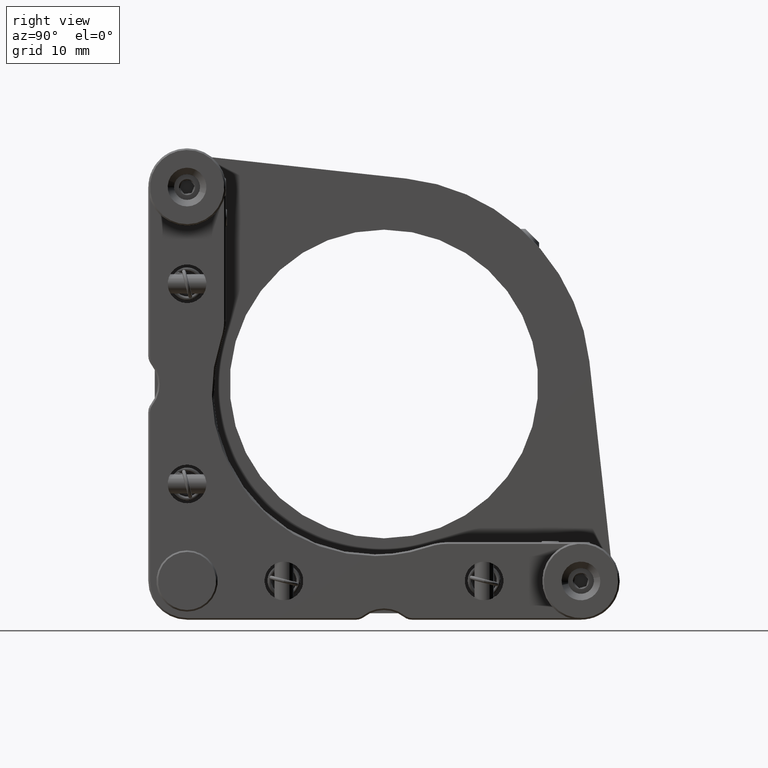
[diagram: clean part render]
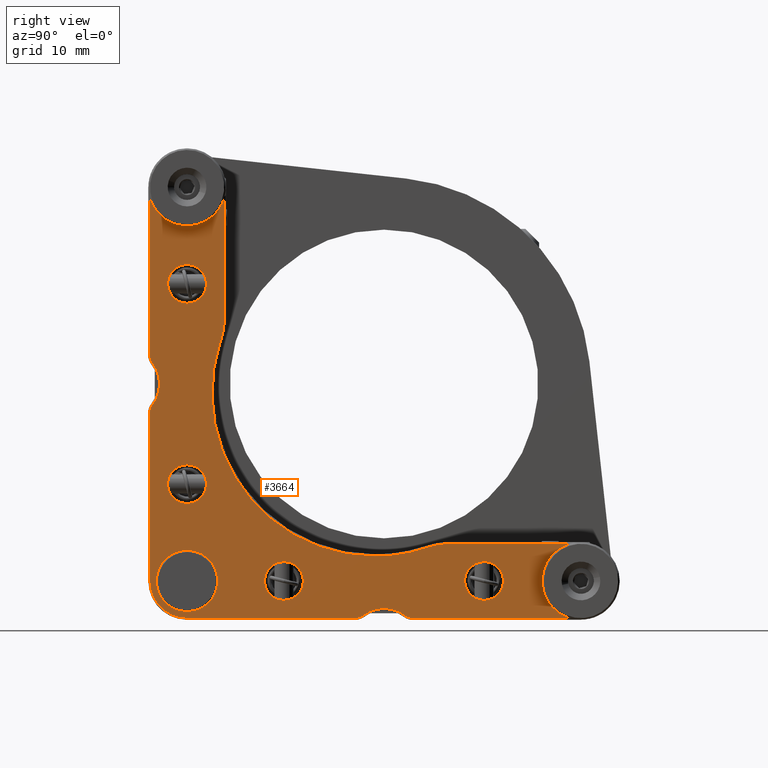
[diagram: same view with one face highlighted and labeled with its STEP entity id]
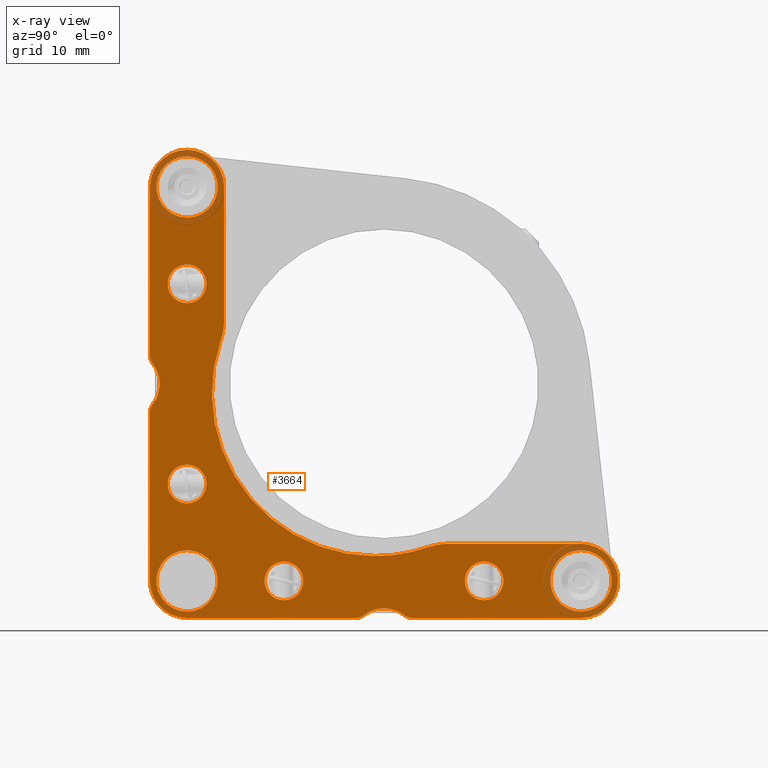
[diagram: x-ray of the same camera — body ghosted, the highlighted face saturated]
A machine part, right view. The second image highlights one B-rep face of the part: STEP entity #3664.
The next image is the same camera in x-ray: the body ghosted, the highlighted face saturated — about 6% of this face is hidden behind the body in this view.
In plain terms, the highlighted planar face has unit normal (1, 0, 0).
Its self-contained STEP definition (entity closure, byte-faithful):
#37 = CIRCLE ( 'NONE', #4143, 1.749999999999973799 ) ;
#62 = CARTESIAN_POINT ( 'NONE',  ( 7.500000000000000000, -30.50000000000001421, -36.24999999999997868 ) ) ;
#92 = ORIENTED_EDGE ( 'NONE', *, *, #14447, .F. ) ;
#99 = CARTESIAN_POINT ( 'NONE',  ( 7.500000000000000000, 4.330127018922172333, -36.24999999999997158 ) ) ;
#104 = EDGE_CURVE ( 'NONE', #2588, #3512, #14857, .T. ) ;
#130 = EDGE_LOOP ( 'NONE', ( #5963, #11564 ) ) ;
#252 = DIRECTION ( 'NONE',  ( 1.000000000000000000, 0.0000000000000000000, -0.0000000000000000000 ) ) ;
#282 = FACE_BOUND ( 'NONE', #14393, .T. ) ;
#370 = LINE ( 'NONE', #6398, #14905 ) ;
#386 = LINE ( 'NONE', #489, #9195 ) ;
#424 = CARTESIAN_POINT ( 'NONE',  ( 7.500000000000000000, -25.27928571428576277, 6.806230180509777128 ) ) ;
#427 = CARTESIAN_POINT ( 'NONE',  ( 7.500000000000000000, -35.87499999999998579, -3.247595264191514897 ) ) ;
#447 = DIRECTION ( 'NONE',  ( 1.000000000000000000, 0.0000000000000000000, 0.0000000000000000000 ) ) ;
#489 = CARTESIAN_POINT ( 'NONE',  ( 7.500000000000000000, 30.49999999999999289, -36.24999999999997158 ) ) ;
#545 = CARTESIAN_POINT ( 'NONE',  ( 7.500000000000000000, 15.49999999999999289, -27.50000000000002132 ) ) ;
#623 = VERTEX_POINT ( 'NONE', #4999 ) ;
#669 = CARTESIAN_POINT ( 'NONE',  ( 7.500000000000000000, -4.330127018922193649, -36.24999999999997158 ) ) ;
#674 = EDGE_LOOP ( 'NONE', ( #2429, #14532 ) ) ;
#704 = EDGE_CURVE ( 'NONE', #5251, #2275, #4405, .T. ) ;
#713 = CARTESIAN_POINT ( 'NONE',  ( 7.500000000000000000, -36.24999999999997868, -30.50000000000001421 ) ) ;
#757 = DIRECTION ( 'NONE',  ( 0.0000000000000000000, 0.0000000000000000000, -1.000000000000000000 ) ) ;
#769 = ORIENTED_EDGE ( 'NONE', *, *, #2735, .F. ) ;
#771 = EDGE_LOOP ( 'NONE', ( #769, #16947 ) ) ;
#773 = DIRECTION ( 'NONE',  ( 0.0000000000000000000, 0.0000000000000000000, -1.000000000000000000 ) ) ;
#1018 = LINE ( 'NONE', #7047, #9461 ) ;
#1172 = CARTESIAN_POINT ( 'NONE',  ( 7.500000000000000000, -1.400000000000005240, -26.65000000000003411 ) ) ;
#1272 = CARTESIAN_POINT ( 'NONE',  ( 7.500000000000000000, -15.49999999999999112, -33.50000000000000000 ) ) ;
#1293 = CARTESIAN_POINT ( 'NONE',  ( 7.500000000000000000, 30.49999999999999289, -30.50000000000000711 ) ) ;
#1428 = AXIS2_PLACEMENT_3D ( 'NONE', #15208, #12046, #12143 ) ;
#1441 = EDGE_CURVE ( 'NONE', #2003, #1477, #5373, .T. ) ;
#1477 = VERTEX_POINT ( 'NONE', #4896 ) ;
#1508 = EDGE_CURVE ( 'NONE', #7924, #2598, #4747, .T. ) ;
#1514 = CIRCLE ( 'NONE', #10008, 5.749999999999970690 ) ;
#1545 = CARTESIAN_POINT ( 'NONE',  ( 7.500000000000000000, 36.24999999999996447, -30.50000000000000711 ) ) ;
#1553 = VERTEX_POINT ( 'NONE', #15045 ) ;
#1597 = AXIS2_PLACEMENT_3D ( 'NONE', #12088, #8883, #19273 ) ;
#1641 = CARTESIAN_POINT ( 'NONE',  ( 7.500000000000000000, -35.87499999999998579, 3.247595264191785347 ) ) ;
#1753 = EDGE_CURVE ( 'NONE', #1553, #6243, #4104, .T. ) ;
#1864 = CARTESIAN_POINT ( 'NONE',  ( 7.500000000000000000, 0.0000000000000000000, 0.0000000000000000000 ) ) ;
#1874 = CARTESIAN_POINT ( 'NONE',  ( 7.500000000000000000, -30.50000000000002842, 25.74999999999998579 ) ) ;
#1922 = DIRECTION ( 'NONE',  ( 0.0000000000000000000, 0.0000000000000000000, 1.000000000000000000 ) ) ;
#1935 = CIRCLE ( 'NONE', #15449, 9.749999999999969802 ) ;
#1984 = ORIENTED_EDGE ( 'NONE', *, *, #11538, .T. ) ;
#2003 = VERTEX_POINT ( 'NONE', #11054 ) ;
#2019 = DIRECTION ( 'NONE',  ( 1.000000000000000000, 0.0000000000000000000, -0.0000000000000000000 ) ) ;
#2106 = DIRECTION ( 'NONE',  ( 0.0000000000000000000, 0.0000000000000000000, -1.000000000000000000 ) ) ;
#2133 = CARTESIAN_POINT ( 'NONE',  ( 7.500000000000000000, -30.50000000000001421, -25.75000000000001066 ) ) ;
#2275 = VERTEX_POINT ( 'NONE', #3722 ) ;
#2310 = AXIS2_PLACEMENT_3D ( 'NONE', #18757, #9625, #9438 ) ;
#2392 = DIRECTION ( 'NONE',  ( 0.0000000000000000000, 0.0000000000000000000, -1.000000000000000000 ) ) ;
#2429 = ORIENTED_EDGE ( 'NONE', *, *, #5554, .F. ) ;
#2588 = VERTEX_POINT ( 'NONE', #62 ) ;
#2598 = VERTEX_POINT ( 'NONE', #545 ) ;
#2735 = EDGE_CURVE ( 'NONE', #1477, #2003, #2907, .T. ) ;
#2777 = CARTESIAN_POINT ( 'NONE',  ( 7.500000000000000000, 30.49999999999999289, -30.50000000000000711 ) ) ;
#2848 = VERTEX_POINT ( 'NONE', #15814 ) ;
#2871 = ORIENTED_EDGE ( 'NONE', *, *, #5290, .F. ) ;
#2907 = CIRCLE ( 'NONE', #5755, 2.999999999999981792 ) ;
#3099 = CARTESIAN_POINT ( 'NONE',  ( 7.500000000000000000, -15.49999999999999112, -30.50000000000000711 ) ) ;
#3138 = VERTEX_POINT ( 'NONE', #18442 ) ;
#3182 = DIRECTION ( 'NONE',  ( 1.000000000000000000, 0.0000000000000000000, 0.0000000000000000000 ) ) ;
#3323 = FACE_BOUND ( 'NONE', #6432, .T. ) ;
#3407 = VECTOR ( 'NONE', #17507, 1000.000000000000000 ) ;
#3436 = VERTEX_POINT ( 'NONE', #11809 ) ;
#3443 = CARTESIAN_POINT ( 'NONE',  ( 7.500000000000000000, -30.50000000000002842, 35.24999999999999289 ) ) ;
#3512 = VERTEX_POINT ( 'NONE', #669 ) ;
#3549 = DIRECTION ( 'NONE',  ( 0.0000000000000000000, 0.0000000000000000000, -1.000000000000000000 ) ) ;
#3664 = ADVANCED_FACE ( 'NONE', ( #12291, #6694, #7797, #13780, #282, #18288, #4829, #3323 ), #9356, .T. ) ;
#3680 = EDGE_CURVE ( 'NONE', #623, #3436, #370, .T. ) ;
#3722 = CARTESIAN_POINT ( 'NONE',  ( 7.500000000000000000, -30.50000000000001421, -35.25000000000000000 ) ) ;
#3724 = AXIS2_PLACEMENT_3D ( 'NONE', #8289, #14270, #773 ) ;
#3767 = DIRECTION ( 'NONE',  ( 0.0000000000000000000, 0.0000000000000000000, -1.000000000000000000 ) ) ;
#3988 = CARTESIAN_POINT ( 'NONE',  ( 7.500000000000000000, -36.24999999999997868, 4.330127018922317994 ) ) ;
#4030 = AXIS2_PLACEMENT_3D ( 'NONE', #14124, #9412, #1922 ) ;
#4063 = EDGE_CURVE ( 'NONE', #10786, #8485, #11768, .T. ) ;
#4104 = CIRCLE ( 'NONE', #12260, 25.25000000000002842 ) ;
#4143 = AXIS2_PLACEMENT_3D ( 'NONE', #14305, #17150, #3767 ) ;
#4205 = ORIENTED_EDGE ( 'NONE', *, *, #5818, .T. ) ;
#4294 = VERTEX_POINT ( 'NONE', #8306 ) ;
#4405 = CIRCLE ( 'NONE', #15708, 4.749999999999997335 ) ;
#4419 = EDGE_LOOP ( 'NONE', ( #8570, #5870 ) ) ;
#4532 = DIRECTION ( 'NONE',  ( 0.0000000000000000000, -1.321694076934704091E-15, -1.000000000000000000 ) ) ;
#4541 = VERTEX_POINT ( 'NONE', #19383 ) ;
#4557 = DIRECTION ( 'NONE',  ( 1.000000000000000000, 0.0000000000000000000, 0.0000000000000000000 ) ) ;
#4734 = EDGE_CURVE ( 'NONE', #11152, #15326, #9897, .T. ) ;
#4747 = CIRCLE ( 'NONE', #16369, 2.999999999999988898 ) ;
#4761 = CARTESIAN_POINT ( 'NONE',  ( 7.500000000000000000, 30.49999999999999289, -30.50000000000000711 ) ) ;
#4825 = CARTESIAN_POINT ( 'NONE',  ( 7.500000000000000000, -40.00000000000000711, 1.318389841742373392E-13 ) ) ;
#4829 = FACE_BOUND ( 'NONE', #19448, .T. ) ;
#4896 = CARTESIAN_POINT ( 'NONE',  ( 7.500000000000000000, -30.49999999999999289, 12.50000000000001599 ) ) ;
#4999 = CARTESIAN_POINT ( 'NONE',  ( 7.500000000000000000, -24.75000000000005684, 9.974972527439284420 ) ) ;
#5061 = DIRECTION ( 'NONE',  ( 1.000000000000000000, 0.0000000000000000000, 0.0000000000000000000 ) ) ;
#5163 = CIRCLE ( 'NONE', #10493, 2.999999999999995559 ) ;
#5188 = CARTESIAN_POINT ( 'NONE',  ( 7.500000000000000000, -1.400000000000005240, -1.400000000000005462 ) ) ;
#5234 = CIRCLE ( 'NONE', #7758, 2.999999999999995559 ) ;
#5251 = VERTEX_POINT ( 'NONE', #2133 ) ;
#5287 = DIRECTION ( 'NONE',  ( 0.0000000000000000000, 0.0000000000000000000, -1.000000000000000000 ) ) ;
#5290 = EDGE_CURVE ( 'NONE', #18582, #11108, #7744, .T. ) ;
#5316 = ORIENTED_EDGE ( 'NONE', *, *, #104, .T. ) ;
#5373 = CIRCLE ( 'NONE', #14783, 2.999999999999981792 ) ;
#5379 = ORIENTED_EDGE ( 'NONE', *, *, #10905, .T. ) ;
#5483 = EDGE_CURVE ( 'NONE', #2275, #5251, #15587, .T. ) ;
#5514 = AXIS2_PLACEMENT_3D ( 'NONE', #11205, #6695, #15651 ) ;
#5554 = EDGE_CURVE ( 'NONE', #10407, #4294, #17781, .T. ) ;
#5557 = CIRCLE ( 'NONE', #18107, 5.749999999999970690 ) ;
#5665 = DIRECTION ( 'NONE',  ( 0.0000000000000000000, -1.000000000000000000, -2.448429006113450357E-16 ) ) ;
#5686 = ORIENTED_EDGE ( 'NONE', *, *, #16798, .T. ) ;
#5753 = ORIENTED_EDGE ( 'NONE', *, *, #17091, .F. ) ;
#5755 = AXIS2_PLACEMENT_3D ( 'NONE', #6278, #13647, #10695 ) ;
#5774 = VERTEX_POINT ( 'NONE', #424 ) ;
#5818 = EDGE_CURVE ( 'NONE', #6243, #5774, #19034, .T. ) ;
#5870 = ORIENTED_EDGE ( 'NONE', *, *, #704, .F. ) ;
#5913 = EDGE_CURVE ( 'NONE', #4294, #10407, #5234, .T. ) ;
#5948 = DIRECTION ( 'NONE',  ( 1.000000000000000000, 0.0000000000000000000, 0.0000000000000000000 ) ) ;
#5963 = ORIENTED_EDGE ( 'NONE', *, *, #11696, .F. ) ;
#6001 = DIRECTION ( 'NONE',  ( 1.000000000000000000, 0.0000000000000000000, 0.0000000000000000000 ) ) ;
#6046 = DIRECTION ( 'NONE',  ( 0.0000000000000000000, 0.0000000000000000000, -1.000000000000000000 ) ) ;
#6173 = CIRCLE ( 'NONE', #14338, 4.749999999999997335 ) ;
#6205 = AXIS2_PLACEMENT_3D ( 'NONE', #10176, #10275, #6046 ) ;
#6231 = DIRECTION ( 'NONE',  ( 0.0000000000000000000, 0.0000000000000000000, -1.000000000000000000 ) ) ;
#6243 = VERTEX_POINT ( 'NONE', #1172 ) ;
#6264 = VERTEX_POINT ( 'NONE', #1272 ) ;
#6278 = CARTESIAN_POINT ( 'NONE',  ( 7.500000000000000000, -30.49999999999999289, 15.50000000000000000 ) ) ;
#6398 = CARTESIAN_POINT ( 'NONE',  ( 7.500000000000000000, -24.75000000000005684, 30.49999999999998579 ) ) ;
#6432 = EDGE_LOOP ( 'NONE', ( #2871, #17558 ) ) ;
#6564 = EDGE_CURVE ( 'NONE', #3138, #8988, #18741, .T. ) ;
#6694 = FACE_BOUND ( 'NONE', #771, .T. ) ;
#6695 = DIRECTION ( 'NONE',  ( 1.000000000000000000, 0.0000000000000000000, 0.0000000000000000000 ) ) ;
#6856 = DIRECTION ( 'NONE',  ( -1.000000000000000000, -0.0000000000000000000, -0.0000000000000000000 ) ) ;
#6964 = CIRCLE ( 'NONE', #1597, 4.750000000000000888 ) ;
#7047 = CARTESIAN_POINT ( 'NONE',  ( 7.500000000000000000, 9.974972527439348369, -24.75000000000003553 ) ) ;
#7155 = CARTESIAN_POINT ( 'NONE',  ( 7.500000000000000000, 15.49999999999999289, -30.50000000000000711 ) ) ;
#7248 = ORIENTED_EDGE ( 'NONE', *, *, #8046, .T. ) ;
#7251 = DIRECTION ( 'NONE',  ( 0.0000000000000000000, 0.0000000000000000000, -1.000000000000000000 ) ) ;
#7390 = CARTESIAN_POINT ( 'NONE',  ( 7.500000000000000000, -4.330127018922193649, -36.24999999999997158 ) ) ;
#7414 = EDGE_CURVE ( 'NONE', #9222, #2588, #5557, .T. ) ;
#7562 = EDGE_CURVE ( 'NONE', #11108, #18582, #6173, .T. ) ;
#7689 = CIRCLE ( 'NONE', #2310, 1.749999999999973799 ) ;
#7705 = AXIS2_PLACEMENT_3D ( 'NONE', #13254, #17668, #11675 ) ;
#7744 = CIRCLE ( 'NONE', #11485, 4.749999999999997335 ) ;
#7758 = AXIS2_PLACEMENT_3D ( 'NONE', #14511, #11656, #2392 ) ;
#7797 = FACE_BOUND ( 'NONE', #674, .T. ) ;
#7818 = DIRECTION ( 'NONE',  ( 0.0000000000000000000, 1.000000000000000000, 9.505334114941409750E-17 ) ) ;
#7834 = DIRECTION ( 'NONE',  ( 0.0000000000000000000, 0.0000000000000000000, -1.000000000000000000 ) ) ;
#7864 = DIRECTION ( 'NONE',  ( 0.0000000000000000000, 0.0000000000000000000, 1.000000000000000000 ) ) ;
#7891 = DIRECTION ( 'NONE',  ( 1.000000000000000000, 0.0000000000000000000, 0.0000000000000000000 ) ) ;
#7924 = VERTEX_POINT ( 'NONE', #11806 ) ;
#8046 = EDGE_CURVE ( 'NONE', #18714, #11736, #15302, .T. ) ;
#8289 = CARTESIAN_POINT ( 'NONE',  ( 7.500000000000000000, -30.50000000000000711, 30.49999999999998579 ) ) ;
#8296 = EDGE_CURVE ( 'NONE', #3512, #10786, #14370, .T. ) ;
#8306 = CARTESIAN_POINT ( 'NONE',  ( 7.500000000000000000, -30.50000000000001421, -12.49999999999999289 ) ) ;
#8383 = EDGE_CURVE ( 'NONE', #13988, #18690, #12157, .T. ) ;
#8485 = VERTEX_POINT ( 'NONE', #14597 ) ;
#8570 = ORIENTED_EDGE ( 'NONE', *, *, #5483, .F. ) ;
#8746 = CARTESIAN_POINT ( 'NONE',  ( 7.500000000000000000, 9.974972527439348369, -24.75000000000003553 ) ) ;
#8874 = VERTEX_POINT ( 'NONE', #8746 ) ;
#8883 = DIRECTION ( 'NONE',  ( 1.000000000000000000, 0.0000000000000000000, 0.0000000000000000000 ) ) ;
#8988 = VERTEX_POINT ( 'NONE', #10183 ) ;
#9008 = ORIENTED_EDGE ( 'NONE', *, *, #10348, .T. ) ;
#9195 = VECTOR ( 'NONE', #7818, 1000.000000000000000 ) ;
#9202 = CARTESIAN_POINT ( 'NONE',  ( 7.500000000000000000, -3.247595264191659670, -35.87499999999998579 ) ) ;
#9222 = VERTEX_POINT ( 'NONE', #713 ) ;
#9318 = AXIS2_PLACEMENT_3D ( 'NONE', #11953, #3182, #14919 ) ;
#9356 = PLANE ( 'NONE',  #9866 ) ;
#9392 = AXIS2_PLACEMENT_3D ( 'NONE', #2777, #5948, #12123 ) ;
#9412 = DIRECTION ( 'NONE',  ( 1.000000000000000000, 0.0000000000000000000, -0.0000000000000000000 ) ) ;
#9438 = DIRECTION ( 'NONE',  ( 0.0000000000000000000, 0.0000000000000000000, -1.000000000000000000 ) ) ;
#9461 = VECTOR ( 'NONE', #5665, 1000.000000000000000 ) ;
#9625 = DIRECTION ( 'NONE',  ( 1.000000000000000000, 0.0000000000000000000, 0.0000000000000000000 ) ) ;
#9866 = AXIS2_PLACEMENT_3D ( 'NONE', #1864, #7891, #13872 ) ;
#9871 = DIRECTION ( 'NONE',  ( 1.000000000000000000, 0.0000000000000000000, 0.0000000000000000000 ) ) ;
#9897 = CIRCLE ( 'NONE', #5514, 4.750000000000000888 ) ;
#9919 = CARTESIAN_POINT ( 'NONE',  ( 7.500000000000000000, -30.50000000000002842, 30.49999999999998579 ) ) ;
#9993 = DIRECTION ( 'NONE',  ( 1.000000000000000000, 0.0000000000000000000, 0.0000000000000000000 ) ) ;
#10008 = AXIS2_PLACEMENT_3D ( 'NONE', #9919, #17389, #757 ) ;
#10020 = EDGE_CURVE ( 'NONE', #12177, #3138, #19125, .T. ) ;
#10021 = CARTESIAN_POINT ( 'NONE',  ( 7.500000000000000000, -30.50000000000001421, -18.49999999999998224 ) ) ;
#10115 = ORIENTED_EDGE ( 'NONE', *, *, #14459, .T. ) ;
#10176 = CARTESIAN_POINT ( 'NONE',  ( 7.500000000000000000, -34.50000000000000000, 4.330127018922317994 ) ) ;
#10183 = CARTESIAN_POINT ( 'NONE',  ( 7.500000000000000000, -36.24999999999997868, 4.330127018922317994 ) ) ;
#10191 = ORIENTED_EDGE ( 'NONE', *, *, #4734, .F. ) ;
#10275 = DIRECTION ( 'NONE',  ( 1.000000000000000000, 0.0000000000000000000, 0.0000000000000000000 ) ) ;
#10313 = EDGE_CURVE ( 'NONE', #4541, #9222, #12982, .T. ) ;
#10348 = EDGE_CURVE ( 'NONE', #3436, #12177, #1514, .T. ) ;
#10392 = CARTESIAN_POINT ( 'NONE',  ( 7.500000000000000000, -30.50000000000002842, 36.24999999999996447 ) ) ;
#10407 = VERTEX_POINT ( 'NONE', #10021 ) ;
#10421 = ORIENTED_EDGE ( 'NONE', *, *, #3680, .T. ) ;
#10493 = AXIS2_PLACEMENT_3D ( 'NONE', #3099, #2019, #16691 ) ;
#10527 = DIRECTION ( 'NONE',  ( 0.0000000000000000000, 0.0000000000000000000, -1.000000000000000000 ) ) ;
#10600 = DIRECTION ( 'NONE',  ( 1.000000000000000000, 0.0000000000000000000, 0.0000000000000000000 ) ) ;
#10695 = DIRECTION ( 'NONE',  ( 0.0000000000000000000, 0.0000000000000000000, 1.000000000000000000 ) ) ;
#10742 = ORIENTED_EDGE ( 'NONE', *, *, #14731, .T. ) ;
#10786 = VERTEX_POINT ( 'NONE', #9202 ) ;
#10889 = DIRECTION ( 'NONE',  ( 0.0000000000000000000, 0.0000000000000000000, -1.000000000000000000 ) ) ;
#10905 = EDGE_CURVE ( 'NONE', #8485, #11069, #37, .T. ) ;
#11054 = CARTESIAN_POINT ( 'NONE',  ( 7.500000000000000000, -30.49999999999999289, 18.49999999999998224 ) ) ;
#11061 = DIRECTION ( 'NONE',  ( -1.000000000000000000, -0.0000000000000000000, -0.0000000000000000000 ) ) ;
#11069 = VERTEX_POINT ( 'NONE', #99 ) ;
#11108 = VERTEX_POINT ( 'NONE', #13690 ) ;
#11152 = VERTEX_POINT ( 'NONE', #1874 ) ;
#11165 = VECTOR ( 'NONE', #5287, 1000.000000000000000 ) ;
#11205 = CARTESIAN_POINT ( 'NONE',  ( 7.500000000000000000, -30.50000000000002842, 30.49999999999998579 ) ) ;
#11208 = ORIENTED_EDGE ( 'NONE', *, *, #13506, .T. ) ;
#11463 = DIRECTION ( 'NONE',  ( 0.0000000000000000000, 0.0000000000000000000, -1.000000000000000000 ) ) ;
#11485 = AXIS2_PLACEMENT_3D ( 'NONE', #12858, #447, #18473 ) ;
#11538 = EDGE_CURVE ( 'NONE', #8988, #18714, #14683, .T. ) ;
#11564 = ORIENTED_EDGE ( 'NONE', *, *, #16024, .F. ) ;
#11602 = ORIENTED_EDGE ( 'NONE', *, *, #6564, .T. ) ;
#11656 = DIRECTION ( 'NONE',  ( 1.000000000000000000, 0.0000000000000000000, 0.0000000000000000000 ) ) ;
#11675 = DIRECTION ( 'NONE',  ( 0.0000000000000000000, 0.0000000000000000000, -1.000000000000000000 ) ) ;
#11696 = EDGE_CURVE ( 'NONE', #6264, #2848, #16902, .T. ) ;
#11736 = VERTEX_POINT ( 'NONE', #427 ) ;
#11744 = DIRECTION ( 'NONE',  ( 1.000000000000000000, 0.0000000000000000000, 0.0000000000000000000 ) ) ;
#11768 = CIRCLE ( 'NONE', #12390, 5.250000000000025757 ) ;
#11806 = CARTESIAN_POINT ( 'NONE',  ( 7.500000000000000000, 15.49999999999999289, -33.49999999999999289 ) ) ;
#11809 = CARTESIAN_POINT ( 'NONE',  ( 7.500000000000000000, -24.75000000000005684, 30.49999999999998579 ) ) ;
#11953 = CARTESIAN_POINT ( 'NONE',  ( 7.500000000000000000, -30.50000000000001421, -15.49999999999998579 ) ) ;
#12046 = DIRECTION ( 'NONE',  ( 1.000000000000000000, 0.0000000000000000000, 0.0000000000000000000 ) ) ;
#12088 = CARTESIAN_POINT ( 'NONE',  ( 7.500000000000000000, -30.50000000000002842, 30.49999999999998579 ) ) ;
#12123 = DIRECTION ( 'NONE',  ( 0.0000000000000000000, 0.0000000000000000000, -1.000000000000000000 ) ) ;
#12143 = DIRECTION ( 'NONE',  ( 0.0000000000000000000, 0.0000000000000000000, -1.000000000000000000 ) ) ;
#12157 = CIRCLE ( 'NONE', #18137, 5.749999999999970690 ) ;
#12177 = VERTEX_POINT ( 'NONE', #10392 ) ;
#12260 = AXIS2_PLACEMENT_3D ( 'NONE', #5188, #6856, #14137 ) ;
#12291 = FACE_OUTER_BOUND ( 'NONE', #19045, .T. ) ;
#12386 = DIRECTION ( 'NONE',  ( 0.0000000000000000000, 0.0000000000000000000, 1.000000000000000000 ) ) ;
#12390 = AXIS2_PLACEMENT_3D ( 'NONE', #12412, #15376, #3549 ) ;
#12412 = CARTESIAN_POINT ( 'NONE',  ( 7.500000000000000000, -6.938893903907228378E-15, -40.00000000000000711 ) ) ;
#12502 = EDGE_CURVE ( 'NONE', #11736, #4541, #7689, .T. ) ;
#12827 = EDGE_CURVE ( 'NONE', #8874, #1553, #13644, .T. ) ;
#12858 = CARTESIAN_POINT ( 'NONE',  ( 7.500000000000000000, 30.49999999999999289, -30.50000000000000711 ) ) ;
#12910 = AXIS2_PLACEMENT_3D ( 'NONE', #7155, #11744, #7251 ) ;
#12982 = LINE ( 'NONE', #18978, #3407 ) ;
#13106 = AXIS2_PLACEMENT_3D ( 'NONE', #4825, #16917, #4532 ) ;
#13129 = CIRCLE ( 'NONE', #9392, 5.749999999999970690 ) ;
#13254 = CARTESIAN_POINT ( 'NONE',  ( 7.500000000000000000, 9.974972527439348369, -34.50000000000000711 ) ) ;
#13286 = CARTESIAN_POINT ( 'NONE',  ( 7.500000000000000000, -4.330127018922190985, -34.50000000000000000 ) ) ;
#13506 = EDGE_CURVE ( 'NONE', #18690, #17985, #13129, .T. ) ;
#13642 = CARTESIAN_POINT ( 'NONE',  ( 7.500000000000000000, 15.49999999999999289, -30.50000000000000711 ) ) ;
#13644 = CIRCLE ( 'NONE', #7705, 9.749999999999973355 ) ;
#13647 = DIRECTION ( 'NONE',  ( 1.000000000000000000, 0.0000000000000000000, -0.0000000000000000000 ) ) ;
#13690 = CARTESIAN_POINT ( 'NONE',  ( 7.500000000000000000, 30.49999999999999289, -25.75000000000001066 ) ) ;
#13780 = FACE_BOUND ( 'NONE', #130, .T. ) ;
#13837 = ORIENTED_EDGE ( 'NONE', *, *, #12827, .T. ) ;
#13843 = CARTESIAN_POINT ( 'NONE',  ( 7.500000000000000000, -30.49999999999999289, 15.50000000000000000 ) ) ;
#13872 = DIRECTION ( 'NONE',  ( 0.0000000000000000000, 0.0000000000000000000, -1.000000000000000000 ) ) ;
#13988 = VERTEX_POINT ( 'NONE', #18886 ) ;
#14124 = CARTESIAN_POINT ( 'NONE',  ( 7.500000000000000000, -15.49999999999999112, -30.50000000000000711 ) ) ;
#14137 = DIRECTION ( 'NONE',  ( 0.0000000000000000000, 6.217523745580232658E-15, -1.000000000000000000 ) ) ;
#14270 = DIRECTION ( 'NONE',  ( 1.000000000000000000, 0.0000000000000000000, 0.0000000000000000000 ) ) ;
#14305 = CARTESIAN_POINT ( 'NONE',  ( 7.500000000000000000, 4.330127018922174997, -34.50000000000000000 ) ) ;
#14338 = AXIS2_PLACEMENT_3D ( 'NONE', #4761, #4557, #6231 ) ;
#14370 = CIRCLE ( 'NONE', #16873, 1.749999999999973799 ) ;
#14393 = EDGE_LOOP ( 'NONE', ( #17763, #92 ) ) ;
#14413 = CARTESIAN_POINT ( 'NONE',  ( 7.500000000000000000, 30.49999999999999289, -24.75000000000003197 ) ) ;
#14426 = ORIENTED_EDGE ( 'NONE', *, *, #12502, .T. ) ;
#14447 = EDGE_CURVE ( 'NONE', #2598, #7924, #14490, .T. ) ;
#14459 = EDGE_CURVE ( 'NONE', #17985, #8874, #1018, .T. ) ;
#14490 = CIRCLE ( 'NONE', #12910, 2.999999999999988898 ) ;
#14511 = CARTESIAN_POINT ( 'NONE',  ( 7.500000000000000000, -30.50000000000001421, -15.49999999999998579 ) ) ;
#14532 = ORIENTED_EDGE ( 'NONE', *, *, #5913, .F. ) ;
#14597 = CARTESIAN_POINT ( 'NONE',  ( 7.500000000000000000, 3.247595264191645015, -35.87499999999998579 ) ) ;
#14683 = CIRCLE ( 'NONE', #6205, 1.749999999999973799 ) ;
#14731 = EDGE_CURVE ( 'NONE', #5774, #623, #1935, .T. ) ;
#14783 = AXIS2_PLACEMENT_3D ( 'NONE', #13843, #252, #7864 ) ;
#14857 = LINE ( 'NONE', #7390, #18196 ) ;
#14905 = VECTOR ( 'NONE', #12386, 1000.000000000000000 ) ;
#14919 = DIRECTION ( 'NONE',  ( 0.0000000000000000000, 0.0000000000000000000, -1.000000000000000000 ) ) ;
#15045 = CARTESIAN_POINT ( 'NONE',  ( 7.500000000000000000, 6.806230180509822425, -25.27928571428574855 ) ) ;
#15208 = CARTESIAN_POINT ( 'NONE',  ( 7.500000000000000000, -30.50000000000001421, -30.50000000000000711 ) ) ;
#15259 = ORIENTED_EDGE ( 'NONE', *, *, #10313, .T. ) ;
#15302 = CIRCLE ( 'NONE', #13106, 5.250000000000023981 ) ;
#15326 = VERTEX_POINT ( 'NONE', #3443 ) ;
#15371 = DIRECTION ( 'NONE',  ( 0.0000000000000000000, 0.0000000000000000000, -1.000000000000000000 ) ) ;
#15376 = DIRECTION ( 'NONE',  ( -1.000000000000000000, -0.0000000000000000000, -0.0000000000000000000 ) ) ;
#15449 = AXIS2_PLACEMENT_3D ( 'NONE', #15782, #5061, #7834 ) ;
#15587 = CIRCLE ( 'NONE', #1428, 4.749999999999997335 ) ;
#15593 = CARTESIAN_POINT ( 'NONE',  ( 7.500000000000000000, -1.400000000000005240, -1.400000000000005462 ) ) ;
#15651 = DIRECTION ( 'NONE',  ( 0.0000000000000000000, 0.0000000000000000000, -1.000000000000000000 ) ) ;
#15708 = AXIS2_PLACEMENT_3D ( 'NONE', #19313, #9993, #11463 ) ;
#15782 = CARTESIAN_POINT ( 'NONE',  ( 7.500000000000000000, -34.50000000000002842, 9.974972527439284420 ) ) ;
#15814 = CARTESIAN_POINT ( 'NONE',  ( 7.500000000000000000, -15.49999999999999112, -27.50000000000001066 ) ) ;
#15904 = AXIS2_PLACEMENT_3D ( 'NONE', #15593, #11061, #2106 ) ;
#15941 = CARTESIAN_POINT ( 'NONE',  ( 7.500000000000000000, 30.49999999999999289, -35.25000000000000000 ) ) ;
#16024 = EDGE_CURVE ( 'NONE', #2848, #6264, #5163, .T. ) ;
#16292 = ORIENTED_EDGE ( 'NONE', *, *, #10020, .T. ) ;
#16369 = AXIS2_PLACEMENT_3D ( 'NONE', #13642, #10600, #10889 ) ;
#16561 = ORIENTED_EDGE ( 'NONE', *, *, #7414, .T. ) ;
#16651 = DIRECTION ( 'NONE',  ( 1.000000000000000000, 0.0000000000000000000, 0.0000000000000000000 ) ) ;
#16691 = DIRECTION ( 'NONE',  ( 0.0000000000000000000, 0.0000000000000000000, 1.000000000000000000 ) ) ;
#16798 = EDGE_CURVE ( 'NONE', #11069, #13988, #386, .T. ) ;
#16873 = AXIS2_PLACEMENT_3D ( 'NONE', #13286, #6001, #10527 ) ;
#16902 = CIRCLE ( 'NONE', #4030, 2.999999999999995559 ) ;
#16917 = DIRECTION ( 'NONE',  ( -1.000000000000000000, -0.0000000000000000000, -0.0000000000000000000 ) ) ;
#16947 = ORIENTED_EDGE ( 'NONE', *, *, #1441, .F. ) ;
#17036 = ORIENTED_EDGE ( 'NONE', *, *, #8296, .T. ) ;
#17091 = EDGE_CURVE ( 'NONE', #15326, #11152, #6964, .T. ) ;
#17150 = DIRECTION ( 'NONE',  ( 1.000000000000000000, 0.0000000000000000000, 0.0000000000000000000 ) ) ;
#17389 = DIRECTION ( 'NONE',  ( 1.000000000000000000, 0.0000000000000000000, 0.0000000000000000000 ) ) ;
#17507 = DIRECTION ( 'NONE',  ( 0.0000000000000000000, 0.0000000000000000000, -1.000000000000000000 ) ) ;
#17542 = DIRECTION ( 'NONE',  ( 0.0000000000000000000, 0.0000000000000000000, -1.000000000000000000 ) ) ;
#17558 = ORIENTED_EDGE ( 'NONE', *, *, #7562, .F. ) ;
#17668 = DIRECTION ( 'NONE',  ( 1.000000000000000000, 0.0000000000000000000, 0.0000000000000000000 ) ) ;
#17763 = ORIENTED_EDGE ( 'NONE', *, *, #1508, .F. ) ;
#17781 = CIRCLE ( 'NONE', #9318, 2.999999999999995559 ) ;
#17985 = VERTEX_POINT ( 'NONE', #14413 ) ;
#18023 = CARTESIAN_POINT ( 'NONE',  ( 7.500000000000000000, -30.50000000000001421, -30.50000000000000711 ) ) ;
#18107 = AXIS2_PLACEMENT_3D ( 'NONE', #18023, #16651, #15371 ) ;
#18137 = AXIS2_PLACEMENT_3D ( 'NONE', #1293, #9871, #17542 ) ;
#18196 = VECTOR ( 'NONE', #19369, 1000.000000000000000 ) ;
#18288 = FACE_BOUND ( 'NONE', #4419, .T. ) ;
#18296 = ORIENTED_EDGE ( 'NONE', *, *, #4063, .T. ) ;
#18442 = CARTESIAN_POINT ( 'NONE',  ( 7.500000000000000000, -36.24999999999997868, 30.49999999999998579 ) ) ;
#18473 = DIRECTION ( 'NONE',  ( 0.0000000000000000000, 0.0000000000000000000, -1.000000000000000000 ) ) ;
#18582 = VERTEX_POINT ( 'NONE', #15941 ) ;
#18690 = VERTEX_POINT ( 'NONE', #1545 ) ;
#18714 = VERTEX_POINT ( 'NONE', #1641 ) ;
#18741 = LINE ( 'NONE', #3988, #11165 ) ;
#18757 = CARTESIAN_POINT ( 'NONE',  ( 7.500000000000000000, -34.50000000000000000, -4.330127018922047100 ) ) ;
#18886 = CARTESIAN_POINT ( 'NONE',  ( 7.500000000000000000, 30.49999999999999289, -36.24999999999997868 ) ) ;
#18978 = CARTESIAN_POINT ( 'NONE',  ( 7.500000000000000000, -36.24999999999997868, -30.50000000000001421 ) ) ;
#19034 = CIRCLE ( 'NONE', #15904, 25.25000000000002842 ) ;
#19045 = EDGE_LOOP ( 'NONE', ( #5316, #17036, #18296, #5379, #5686, #19051, #11208, #10115, #13837, #19150, #4205, #10742, #10421, #9008, #16292, #11602, #1984, #7248, #14426, #15259, #16561 ) ) ;
#19051 = ORIENTED_EDGE ( 'NONE', *, *, #8383, .T. ) ;
#19125 = CIRCLE ( 'NONE', #3724, 5.749999999999970690 ) ;
#19150 = ORIENTED_EDGE ( 'NONE', *, *, #1753, .T. ) ;
#19273 = DIRECTION ( 'NONE',  ( 0.0000000000000000000, 0.0000000000000000000, -1.000000000000000000 ) ) ;
#19313 = CARTESIAN_POINT ( 'NONE',  ( 7.500000000000000000, -30.50000000000001421, -30.50000000000000711 ) ) ;
#19369 = DIRECTION ( 'NONE',  ( 0.0000000000000000000, 1.000000000000000000, 9.505334114941409750E-17 ) ) ;
#19383 = CARTESIAN_POINT ( 'NONE',  ( 7.500000000000000000, -36.24999999999997868, -4.330127018922047100 ) ) ;
#19448 = EDGE_LOOP ( 'NONE', ( #10191, #5753 ) ) ;